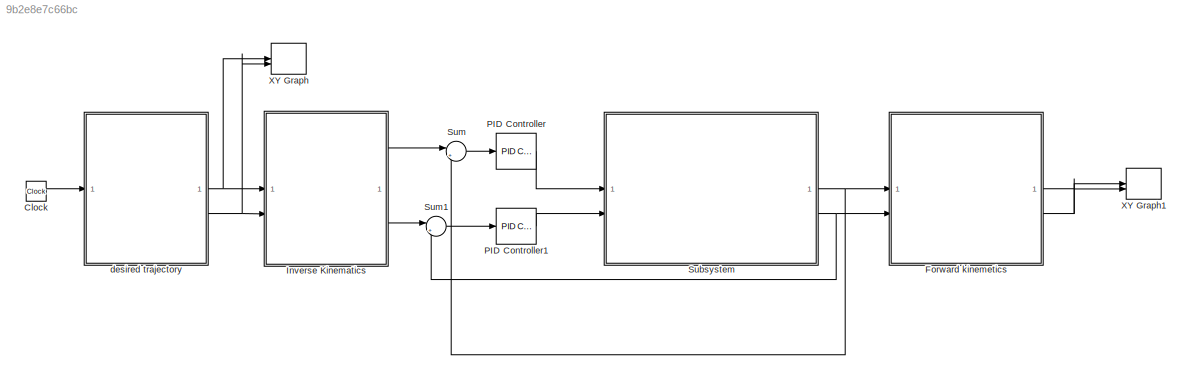
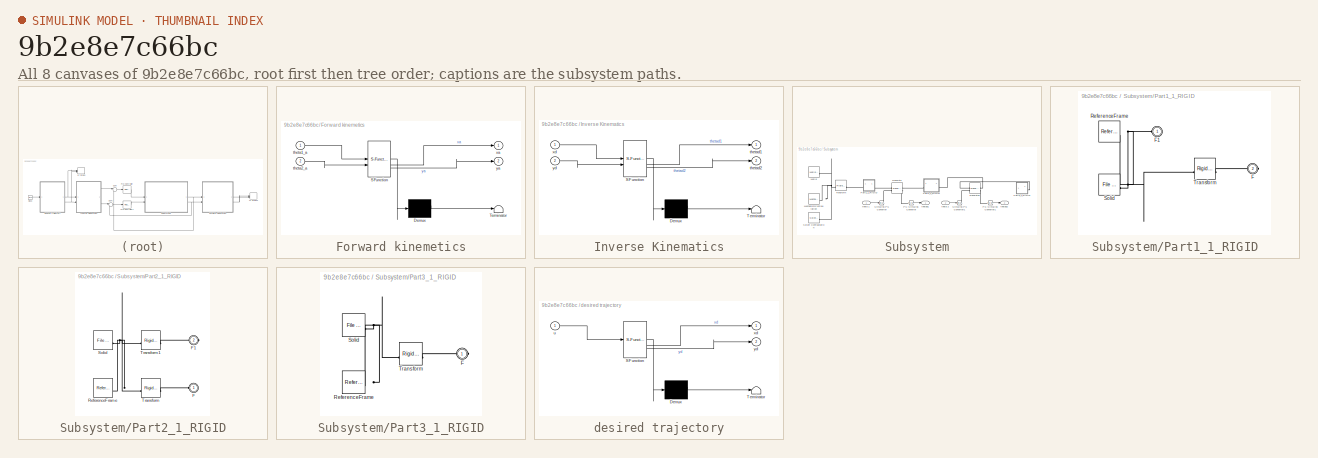
[diagram: thumbnail index - all 8 canvases of the model, root first then tree order]
MODEL slx_9b2e8e7c66bc
KIND model
CONFIG AbsTol = auto
CONFIG EnableMultiTasking = off
CONFIG FixedStep = auto
CONFIG MaxStep = auto
CONFIG MinStep = auto
CONFIG RelTol = 1e-3
CONFIG SampleTimeConstraint = Unconstrained
CONFIG SolverName = VariableStepAuto
CONFIG StartTime = 0.0
CONFIG StopTime = 10.0
WORKSPACE source: external: MATLAB File  (data not in archive)
BLOCK [Clock] Clock
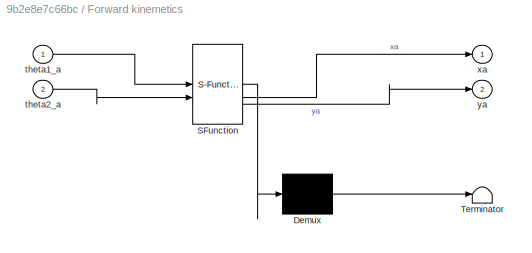
BLOCK [SubSystem] Forward kinemetics
  ErrorFcn = Stateflow.Translate.translate
  LibrarySourceBlock = simulink/User-Defined\nFunctions/MATLAB Function
  PermitHierarchicalResolution = ExplicitOnly
  SFBlockType = MATLAB Function
  TreatAsAtomicUnit = on
BLOCK [Demux] Forward kinemetics/ Demux 
  Outputs = 1
BLOCK [S-Function] Forward kinemetics/ SFunction 
  EnableBusSupport = on
  FunctionName = sf_sfun
  PortCounts = [2 3]
  SFcnIsStateOwnerBlock = off
  SFunctionDeploymentMode = off
  Tag = Stateflow S-Function 1
BLOCK [Terminator] Forward kinemetics/ Terminator 
BLOCK [Inport] Forward kinemetics/theta1_a
BLOCK [Inport] Forward kinemetics/theta2_a
  Port = 2
BLOCK [Outport] Forward kinemetics/xa
BLOCK [Outport] Forward kinemetics/ya
  Port = 2
BLOCK [SubSystem] Inverse Kinematics
  ErrorFcn = Stateflow.Translate.translate
  LibrarySourceBlock = simulink/User-Defined\nFunctions/MATLAB Function
  PermitHierarchicalResolution = ExplicitOnly
  SFBlockType = MATLAB Function
  TreatAsAtomicUnit = on
BLOCK [Demux] Inverse Kinematics/ Demux 
  Outputs = 1
BLOCK [S-Function] Inverse Kinematics/ SFunction 
  EnableBusSupport = on
  FunctionName = sf_sfun
  PortCounts = [2 3]
  SFcnIsStateOwnerBlock = off
  SFunctionDeploymentMode = off
  Tag = Stateflow S-Function 3
BLOCK [Terminator] Inverse Kinematics/ Terminator 
BLOCK [Outport] Inverse Kinematics/thetad1
BLOCK [Outport] Inverse Kinematics/thetad2
  Port = 2
BLOCK [Inport] Inverse Kinematics/xd
BLOCK [Inport] Inverse Kinematics/yd
  Port = 2
BLOCK [Reference] PID Controller  REF=slpidlib/PID Controller
  LibrarySourceBlock = simulink/Continuous/PID Controller
  SourceBlock = slpidlib/PID Controller
  SourceType = PID 1dof
BLOCK [Reference] PID Controller1  REF=slpidlib/PID Controller
  LibrarySourceBlock = simulink/Continuous/PID Controller
  SourceBlock = slpidlib/PID Controller
  SourceType = PID 1dof
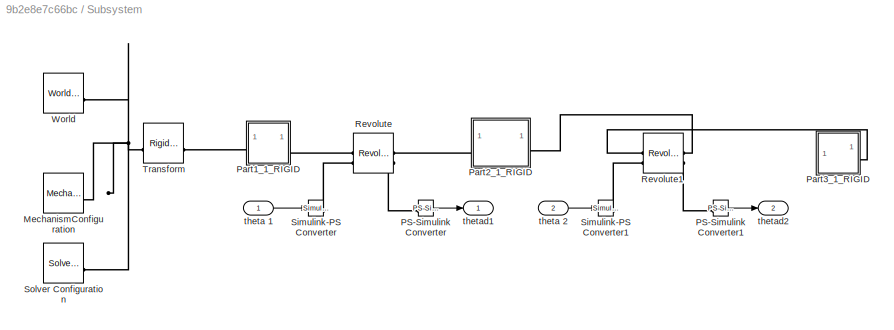
BLOCK [SubSystem] Subsystem
BLOCK [Reference] Subsystem/MechanismConfiguration  REF=sm_lib/Utilities/Mechanism
Configuration
  SourceBlock = sm_lib/Utilities/Mechanism\nConfiguration
  SourceType = Mechanism\nConfiguration
BLOCK [Reference] Subsystem/PS-Simulink Converter  REF=nesl_utility/PS-Simulink
Converter
  SourceBlock = nesl_utility/PS-Simulink\nConverter
  SourceType = PS-Simulink\nConverter
BLOCK [Reference] Subsystem/PS-Simulink Converter1  REF=nesl_utility/PS-Simulink
Converter
  SourceBlock = nesl_utility/PS-Simulink\nConverter
  SourceType = PS-Simulink\nConverter
BLOCK [SubSystem] Subsystem/Part1_1_RIGID
BLOCK [PMIOPort] Subsystem/Part1_1_RIGID/F
  Port = 2
  Side = Right
BLOCK [PMIOPort] Subsystem/Part1_1_RIGID/F1
  Side = Left
BLOCK [Reference] Subsystem/Part1_1_RIGID/ReferenceFrame  REF=sm_lib/Frames and
Transforms/Reference
Frame
  SourceBlock = sm_lib/Frames and\nTransforms/Reference\nFrame
  SourceType = Reference\nFrame
BLOCK [Reference] Subsystem/Part1_1_RIGID/Solid  REF=sm_lib/Body Elements/File Solid
  SourceBlock = sm_lib/Body Elements/File Solid
  SourceType = File Solid
BLOCK [Reference] Subsystem/Part1_1_RIGID/Transform  REF=sm_lib/Frames and
Transforms/Rigid
Transform
  SourceBlock = sm_lib/Frames and\nTransforms/Rigid\nTransform
  SourceType = Rigid\nTransform
BLOCK [SubSystem] Subsystem/Part2_1_RIGID
BLOCK [PMIOPort] Subsystem/Part2_1_RIGID/F
  Side = Left
BLOCK [PMIOPort] Subsystem/Part2_1_RIGID/F1
  Port = 2
  Side = Right
BLOCK [Reference] Subsystem/Part2_1_RIGID/ReferenceFrame  REF=sm_lib/Frames and
Transforms/Reference
Frame
  SourceBlock = sm_lib/Frames and\nTransforms/Reference\nFrame
  SourceType = Reference\nFrame
BLOCK [Reference] Subsystem/Part2_1_RIGID/Solid  REF=sm_lib/Body Elements/File Solid
  SourceBlock = sm_lib/Body Elements/File Solid
  SourceType = File Solid
BLOCK [Reference] Subsystem/Part2_1_RIGID/Transform  REF=sm_lib/Frames and
Transforms/Rigid
Transform
  SourceBlock = sm_lib/Frames and\nTransforms/Rigid\nTransform
  SourceType = Rigid\nTransform
BLOCK [Reference] Subsystem/Part2_1_RIGID/Transform1  REF=sm_lib/Frames and
Transforms/Rigid
Transform
  SourceBlock = sm_lib/Frames and\nTransforms/Rigid\nTransform
  SourceType = Rigid\nTransform
BLOCK [SubSystem] Subsystem/Part3_1_RIGID
BLOCK [PMIOPort] Subsystem/Part3_1_RIGID/F
  Side = Right
BLOCK [Reference] Subsystem/Part3_1_RIGID/ReferenceFrame  REF=sm_lib/Frames and
Transforms/Reference
Frame
  SourceBlock = sm_lib/Frames and\nTransforms/Reference\nFrame
  SourceType = Reference\nFrame
BLOCK [Reference] Subsystem/Part3_1_RIGID/Solid  REF=sm_lib/Body Elements/File Solid
  SourceBlock = sm_lib/Body Elements/File Solid
  SourceType = File Solid
BLOCK [Reference] Subsystem/Part3_1_RIGID/Transform  REF=sm_lib/Frames and
Transforms/Rigid
Transform
  SourceBlock = sm_lib/Frames and\nTransforms/Rigid\nTransform
  SourceType = Rigid\nTransform
BLOCK [Reference] Subsystem/Revolute  REF=sm_lib/Joints/Revolute Joint
  SourceBlock = sm_lib/Joints/Revolute Joint
  SourceType = Revolute Joint
BLOCK [Reference] Subsystem/Revolute1  REF=sm_lib/Joints/Revolute Joint
  SourceBlock = sm_lib/Joints/Revolute Joint
  SourceType = Revolute Joint
BLOCK [Reference] Subsystem/Simulink-PS Converter  REF=nesl_utility/Simulink-PS
Converter
  SourceBlock = nesl_utility/Simulink-PS\nConverter
  SourceType = Simulink-PS\nConverter
BLOCK [Reference] Subsystem/Simulink-PS Converter1  REF=nesl_utility/Simulink-PS
Converter
  SourceBlock = nesl_utility/Simulink-PS\nConverter
  SourceType = Simulink-PS\nConverter
BLOCK [Reference] Subsystem/Solver Configuration  REF=nesl_utility/Solver
Configuration
  SourceBlock = nesl_utility/Solver\nConfiguration
  SourceType = Solver\nConfiguration
BLOCK [Reference] Subsystem/Transform  REF=sm_lib/Frames and
Transforms/Rigid
Transform
  SourceBlock = sm_lib/Frames and\nTransforms/Rigid\nTransform
  SourceType = Rigid\nTransform
BLOCK [Reference] Subsystem/World  REF=sm_lib/Frames and
Transforms/World Frame
  SourceBlock = sm_lib/Frames and\nTransforms/World Frame
  SourceType = World Frame
BLOCK [Inport] Subsystem/theta 1
BLOCK [Inport] Subsystem/theta 2
  Port = 2
BLOCK [Outport] Subsystem/thetad1
BLOCK [Outport] Subsystem/thetad2
  Port = 2
BLOCK [Sum] Sum
  Inputs = |+-
BLOCK [Sum] Sum1
  Inputs = |+-
BLOCK [Record] XY Graph
  CompatibilityTag = XY
  FileSettingsInternal = {"entries":[{"content":{"excelSettings":{"content":{},"type":"Streamout.ExcelSettings"}},"type":"Streamout.FileSettingStorage","uuid":"cbe791d0-50e4-42a1-ac1a-6c35b5910e16"}],"packageUris":["http://schema.mathworks.com/mf0/streamout_blocks/R2020a"],"version":"1.0"}
  Layout = [1 1]
  SignalsInternal = {"entries":[{"content":{"signals":[{"content":{"blockPath":["Assem1/XY Graph"],"channel":[],"dimensions":[1],"domain":"Assem1/XY Graph","lineColor":"#a2142f","plots":[1],"port":1,"sid":[""],"signalID":432,"signalName":"desired trajectory:1"},"type":"RecordBlkView.Signal","uuid":"60081b88-3caa-426a-af3a-371316da9fa6"},{"content":{"blockPath":["Assem1/XY Graph"],"channel":[],"dimensions":[1],"domain...<+379ch>
  VisualizationBindings = {"xyplotplugin":{"info":[{"series":[{"bindingParametersList":[{"parameter":"X-Axis","signalID":432,"signalName":"desired trajectory:1"},{"parameter":"Y-Axis","signalID":436,"signalName":"desired trajectory:2"}],"seriesID":12092}],"subplotID":1}]}}
BLOCK [Record] XY Graph1
  CompatibilityTag = XY
  FileSettingsInternal = {"entries":[{"content":{"excelSettings":{"content":{},"type":"Streamout.ExcelSettings"}},"type":"Streamout.FileSettingStorage","uuid":"ba6db62b-7176-48a8-902f-1068408fe4c0"}],"packageUris":["http://schema.mathworks.com/mf0/streamout_blocks/R2020a"],"version":"1.0"}
  Layout = [1 1]
  SignalsInternal = {"entries":[{"content":{"signals":[{"content":{"blockPath":["Assem1/XY Graph1"],"channel":[],"dimensions":[1],"domain":"Assem1/XY Graph1","lineColor":"#a2142f","plots":[1],"port":1,"sid":[""],"signalID":440,"signalName":"Forward kinemetics:1"},"type":"RecordBlkView.Signal","uuid":"a9fcdc65-e8b8-4b92-9599-655b0be9e531"},{"content":{"blockPath":["Assem1/XY Graph1"],"channel":[],"dimensions":[1],"dom...<+383ch>
  VisualizationBindings = {"xyplotplugin":{"info":[{"series":[{"bindingParametersList":[{"parameter":"X-Axis","signalID":440,"signalName":"Forward kinemetics:1"},{"parameter":"Y-Axis","signalID":444,"signalName":"Forward kinemetics:2"}],"seriesID":65535}],"subplotID":1}]}}
BLOCK [SubSystem] desired trajectory
  ErrorFcn = Stateflow.Translate.translate
  LibrarySourceBlock = simulink/User-Defined\nFunctions/MATLAB Function
  PermitHierarchicalResolution = ExplicitOnly
  SFBlockType = MATLAB Function
  TreatAsAtomicUnit = on
BLOCK [Demux] desired trajectory/ Demux 
  Outputs = 1
BLOCK [S-Function] desired trajectory/ SFunction 
  EnableBusSupport = on
  FunctionName = sf_sfun
  PortCounts = [1 3]
  SFcnIsStateOwnerBlock = off
  SFunctionDeploymentMode = off
  Tag = Stateflow S-Function 2
BLOCK [Terminator] desired trajectory/ Terminator 
BLOCK [Inport] desired trajectory/u
BLOCK [Outport] desired trajectory/xd
BLOCK [Outport] desired trajectory/yd
  Port = 2
LINE Clock:1 -> desired trajectory:1
LINE Forward kinemetics:1 -> XY Graph1:1
LINE Forward kinemetics:2 -> XY Graph1:2
LINE Inverse Kinematics:1 -> Sum:1
LINE Inverse Kinematics:2 -> Sum1:1
LINE PID Controller1:1 -> Subsystem:2
LINE PID Controller:1 -> Subsystem:1
LINE Subsystem/PS-Simulink Converter1:1 -> Subsystem/thetad2:1
LINE Subsystem/PS-Simulink Converter:1 -> Subsystem/thetad1:1
LINE Subsystem/theta 1:1 -> Subsystem/Simulink-PS Converter:1
LINE Subsystem/theta 2:1 -> Subsystem/Simulink-PS Converter1:1
NET Subsystem:1 -> Forward kinemetics:1, Sum:2
NET Subsystem:2 -> Forward kinemetics:2, Sum1:2
LINE Sum1:1 -> PID Controller1:1
LINE Sum:1 -> PID Controller:1
NET desired trajectory:1 -> Inverse Kinematics:1, XY Graph:1
NET desired trajectory:2 -> Inverse Kinematics:2, XY Graph:2
PNET net1: Subsystem/MechanismConfiguration:RConn1 -- Subsystem/Solver Configuration:RConn1 -- Subsystem/Transform:LConn1 -- Subsystem/World:RConn1
PLINE Subsystem/PS-Simulink Converter1:LConn1 -- Subsystem/Revolute1:RConn2
PLINE Subsystem/PS-Simulink Converter:LConn1 -- Subsystem/Revolute:RConn2
PNET net2: Subsystem/Part1_1_RIGID/F1:RConn1 -- Subsystem/Part1_1_RIGID/ReferenceFrame:RConn1 -- Subsystem/Part1_1_RIGID/Solid:RConn1 -- Subsystem/Part1_1_RIGID/Transform:LConn1
PLINE Subsystem/Part1_1_RIGID/F:RConn1 -- Subsystem/Part1_1_RIGID/Transform:RConn1
PLINE Subsystem/Part1_1_RIGID:LConn1 -- Subsystem/Transform:RConn1
PLINE Subsystem/Part1_1_RIGID:RConn1 -- Subsystem/Revolute:LConn1
PLINE Subsystem/Part2_1_RIGID/F1:RConn1 -- Subsystem/Part2_1_RIGID/Transform1:RConn1
PLINE Subsystem/Part2_1_RIGID/F:RConn1 -- Subsystem/Part2_1_RIGID/Transform:RConn1
PNET net3: Subsystem/Part2_1_RIGID/ReferenceFrame:RConn1 -- Subsystem/Part2_1_RIGID/Solid:RConn1 -- Subsystem/Part2_1_RIGID/Transform1:LConn1 -- Subsystem/Part2_1_RIGID/Transform:LConn1
PLINE Subsystem/Part2_1_RIGID:LConn1 -- Subsystem/Revolute:RConn1
PLINE Subsystem/Part2_1_RIGID:RConn1 -- Subsystem/Revolute1:RConn1
PLINE Subsystem/Part3_1_RIGID/F:RConn1 -- Subsystem/Part3_1_RIGID/Transform:RConn1
PNET net4: Subsystem/Part3_1_RIGID/ReferenceFrame:RConn1 -- Subsystem/Part3_1_RIGID/Solid:RConn1 -- Subsystem/Part3_1_RIGID/Transform:LConn1
PLINE Subsystem/Part3_1_RIGID:RConn1 -- Subsystem/Revolute1:LConn1
PLINE Subsystem/Revolute1:LConn2 -- Subsystem/Simulink-PS Converter1:RConn1
PLINE Subsystem/Revolute:LConn2 -- Subsystem/Simulink-PS Converter:RConn1
note: NET lines group one-source signal fan-out (src -> all destinations, sorted); 1:1 wires keep LINE; PNET lines group multi-terminal physical nets as a canonical sorted terminal list (undirected conserving connections); 2-terminal nets keep the pairwise PLINE form
CHART desired trajectory states=1 transitions=1
  STATE_LABEL 'eML_blk_kernel()'
  STATE_LABEL 'SCRIPT:\nfunction [xd,yd] = fcn(u)\n\nxd=1+0.5*sin((2*pi/5)*u+pi/2);\nyd=1+0.5*cos((2*pi/5)*u+pi/2);'
CHART Inverse Kinematics states=1 transitions=1
  STATE_LABEL 'eML_blk_kernel()'
  STATE_LABEL 'SCRIPT:\nfunction [thetad1,thetad2] = inverse_kinematics(xd,yd)\nl1=1;\nl2=1;\nthetad2 = acos((xd^2+yd^2-l1^2-l2^2)/(2*l1*l2));\nthetad1 = atan(yd/xd)-atan((12*sin(thetad2))/(l1 + l2*cos(thetad2)));\n\n\n...............'
CHART Forward kinemetics states=1 transitions=1
  STATE_LABEL 'eML_blk_kernel()'
  STATE_LABEL 'SCRIPT:\nfunction [xa,ya] = Forward_kinematics(theta1_a,theta2_a)\nl1=1;\nl2=1;\nxa = l1*cos(theta1_a)+l2*cos(theta1_a+theta2_a);\nya = l1*sin(theta1_a)+l2*sin(theta1_a+theta2_a);\n\n'
CHART  states=0 transitions=0
CHART  states=0 transitions=0
CHART  states=0 transitions=0
